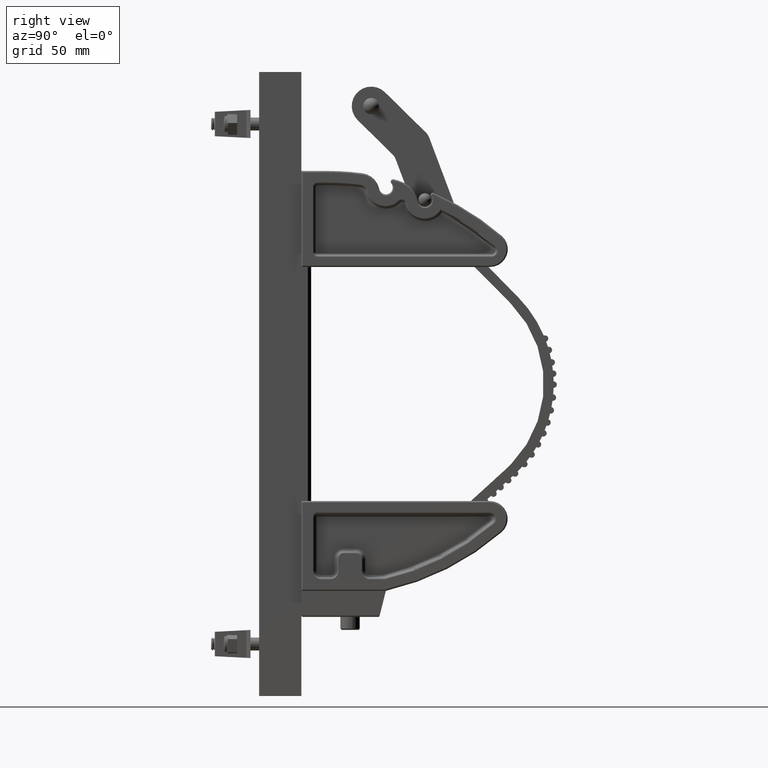
[diagram: clean part render]
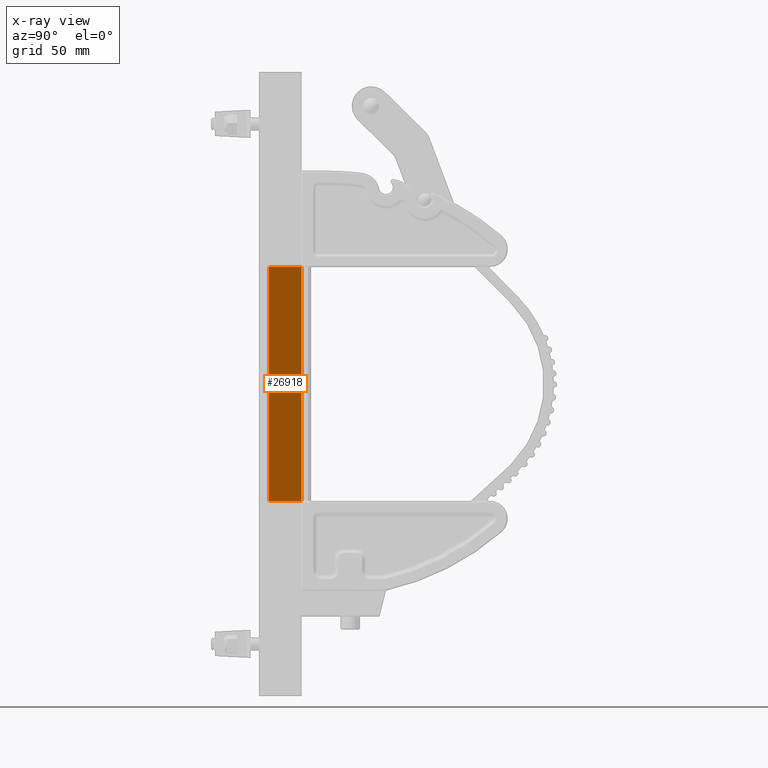
[diagram: x-ray — body ghosted, one internal face saturated and labeled with its STEP entity id]
A machine part, right view, then the same camera in x-ray: the body is ghosted and one INTERNAL B-rep face — a face not visible from any outside direction — is saturated and labeled: STEP entity #26918.
In plain terms, the highlighted planar face has unit normal (0.9344, 0.3561, 0).
Its self-contained STEP definition (entity closure, byte-faithful):
#2139 = EDGE_CURVE ( 'NONE', #23043, #9590, #5133, .T. ) ;
#2274 = VERTEX_POINT ( 'NONE', #36578 ) ;
#2332 = PLANE ( 'NONE',  #24934 ) ;
#4463 = LINE ( 'NONE', #13967, #33600 ) ;
#5051 = CARTESIAN_POINT ( 'NONE',  ( 0.2380000000000001300, -0.8125000000000000000, 2.250000000000000000 ) ) ;
#5133 = LINE ( 'NONE', #5051, #26820 ) ;
#5458 = LINE ( 'NONE', #17048, #10358 ) ;
#5877 = VECTOR ( 'NONE', #18138, 39.37007874015748100 ) ;
#6816 = CARTESIAN_POINT ( 'NONE',  ( 4.370956789862821100E-015, -0.1880000000000018000, 2.250000000000000000 ) ) ;
#7909 = ORIENTED_EDGE ( 'NONE', *, *, #35948, .F. ) ;
#7946 = DIRECTION ( 'NONE',  ( 0.3561197693169032000, -0.9344403190689469800, -0.0000000000000000000 ) ) ;
#8387 = DIRECTION ( 'NONE',  ( -0.0000000000000000000, -0.0000000000000000000, -1.000000000000000000 ) ) ;
#9590 = VERTEX_POINT ( 'NONE', #33253 ) ;
#9796 = ORIENTED_EDGE ( 'NONE', *, *, #16775, .T. ) ;
#10358 = VECTOR ( 'NONE', #33829, 39.37007874015748900 ) ;
#10888 = DIRECTION ( 'NONE',  ( 0.9344403190689470900, 0.3561197693169032600, -0.0000000000000000000 ) ) ;
#13967 = CARTESIAN_POINT ( 'NONE',  ( 0.2380000000000001300, -0.8125000000000000000, 2.250000000000000000 ) ) ;
#15351 = ORIENTED_EDGE ( 'NONE', *, *, #2139, .F. ) ;
#16775 = EDGE_CURVE ( 'NONE', #23043, #2274, #22764, .T. ) ;
#17048 = CARTESIAN_POINT ( 'NONE',  ( 0.2380000000000001300, -0.8125000000000000000, -2.250000000000000000 ) ) ;
#18138 = DIRECTION ( 'NONE',  ( -0.0000000000000000000, -0.0000000000000000000, -1.000000000000000000 ) ) ;
#19876 = EDGE_CURVE ( 'NONE', #2274, #20943, #5458, .T. ) ;
#20943 = VERTEX_POINT ( 'NONE', #36430 ) ;
#22764 = LINE ( 'NONE', #6816, #5877 ) ;
#23043 = VERTEX_POINT ( 'NONE', #27251 ) ;
#24934 = AXIS2_PLACEMENT_3D ( 'NONE', #36128, #10888, #30603 ) ;
#26820 = VECTOR ( 'NONE', #7946, 39.37007874015748900 ) ;
#26918 = ADVANCED_FACE ( 'NONE', ( #27027 ), #2332, .F. ) ;
#27027 = FACE_OUTER_BOUND ( 'NONE', #28190, .T. ) ;
#27251 = CARTESIAN_POINT ( 'NONE',  ( 4.370956789862821100E-015, -0.1880000000000018000, 2.250000000000000000 ) ) ;
#28190 = EDGE_LOOP ( 'NONE', ( #28794, #7909, #15351, #9796 ) ) ;
#28794 = ORIENTED_EDGE ( 'NONE', *, *, #19876, .T. ) ;
#30603 = DIRECTION ( 'NONE',  ( -0.3561197693169032000, 0.9344403190689469800, 0.0000000000000000000 ) ) ;
#33253 = CARTESIAN_POINT ( 'NONE',  ( 0.2380000000000001300, -0.8125000000000000000, 2.250000000000000000 ) ) ;
#33600 = VECTOR ( 'NONE', #8387, 39.37007874015748100 ) ;
#33829 = DIRECTION ( 'NONE',  ( 0.3561197693169032000, -0.9344403190689469800, -0.0000000000000000000 ) ) ;
#35948 = EDGE_CURVE ( 'NONE', #9590, #20943, #4463, .T. ) ;
#36128 = CARTESIAN_POINT ( 'NONE',  ( 0.2380000000000001300, -0.8125000000000000000, 2.250000000000000000 ) ) ;
#36430 = CARTESIAN_POINT ( 'NONE',  ( 0.2380000000000001300, -0.8125000000000000000, -2.250000000000000000 ) ) ;
#36578 = CARTESIAN_POINT ( 'NONE',  ( 4.370956789862821100E-015, -0.1880000000000018000, -2.250000000000000000 ) ) ;